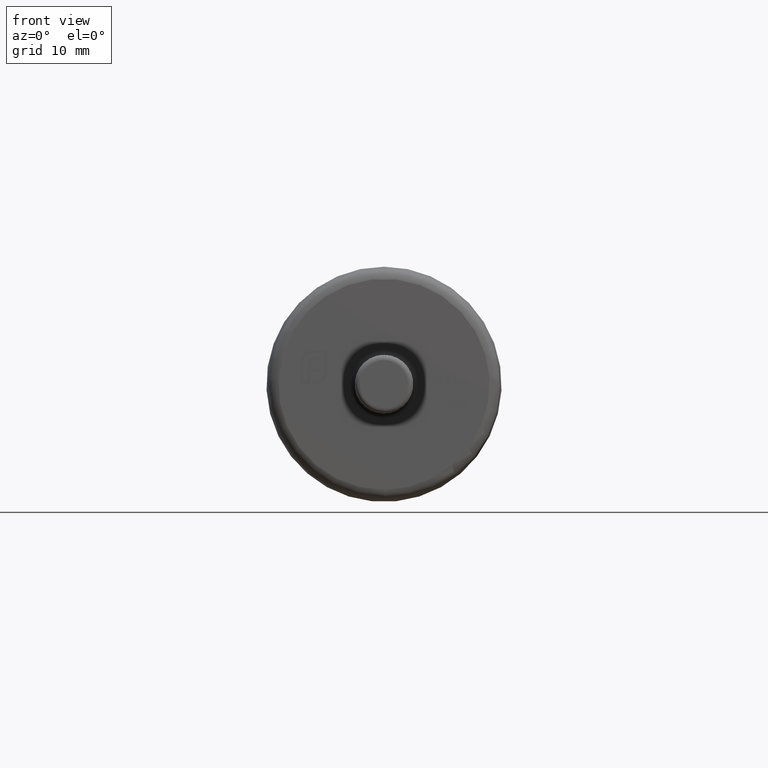
[diagram: clean part render]
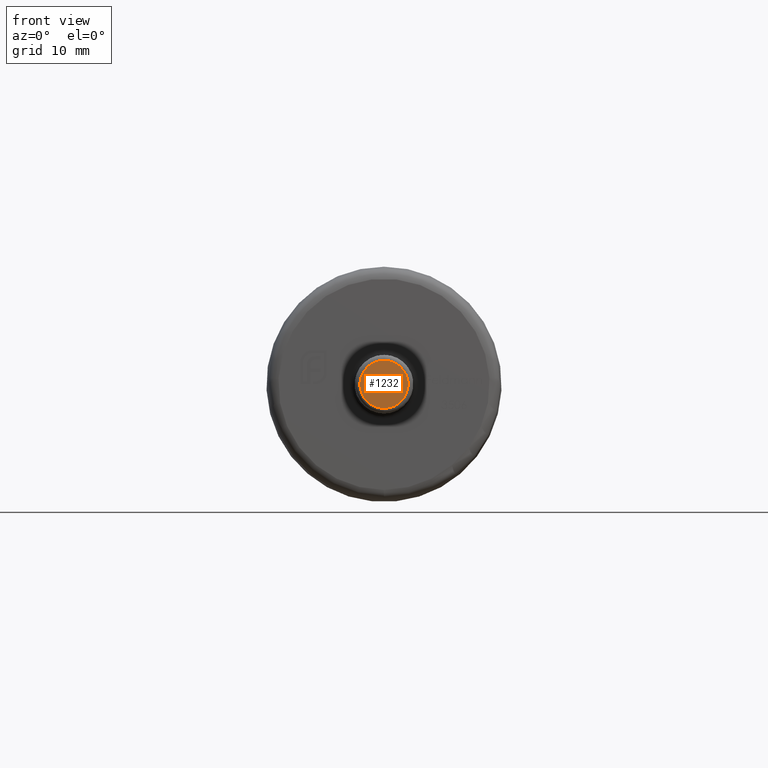
[diagram: same view with one face highlighted and labeled with its STEP entity id]
A machine part, front view. The second image highlights one B-rep face of the part: STEP entity #1232.
In plain terms, the highlighted planar face has unit normal (0, -1, -0).
Its self-contained STEP definition (entity closure, byte-faithful):
#1232 = ADVANCED_FACE ( 'NONE', ( #5551 ), #8605, .T. ) ;
#3098 = AXIS2_PLACEMENT_3D ( 'NONE', #6007, #6121, #5953 ) ;
#3241 = CARTESIAN_POINT ( 'NONE',  ( 0.000000000000000000, -30.49999999999999289, 0.000000000000000000 ) ) ;
#4349 = EDGE_CURVE ( 'NONE', #15162, #15162, #8743, .T. ) ;
#5551 = FACE_OUTER_BOUND ( 'NONE', #16391, .T. ) ;
#5953 = DIRECTION ( 'NONE',  ( 0.000000000000000000, 0.000000000000000000, -1.000000000000000000 ) ) ;
#6007 = CARTESIAN_POINT ( 'NONE',  ( 2.750000000000000888, -30.49999999999999289, 0.000000000000000000 ) ) ;
#6121 = DIRECTION ( 'NONE',  ( 0.000000000000000000, -1.000000000000000000, -0.000000000000000000 ) ) ;
#7660 = AXIS2_PLACEMENT_3D ( 'NONE', #3241, #12218, #11158 ) ;
#8605 = PLANE ( 'NONE',  #3098 ) ;
#8743 = CIRCLE ( 'NONE', #7660, 2.249999999999992895 ) ;
#11158 = DIRECTION ( 'NONE',  ( 0.000000000000000000, 0.000000000000000000, -1.000000000000000000 ) ) ;
#12218 = DIRECTION ( 'NONE',  ( -0.000000000000000000, -1.000000000000000000, -0.000000000000000000 ) ) ;
#12231 = ORIENTED_EDGE ( 'NONE', *, *, #4349, .T. ) ;
#15162 = VERTEX_POINT ( 'NONE', #15258 ) ;
#15258 = CARTESIAN_POINT ( 'NONE',  ( 0.000000000000000000, -30.49999999999999289, -2.249999999999992895 ) ) ;
#16391 = EDGE_LOOP ( 'NONE', ( #12231 ) ) ;